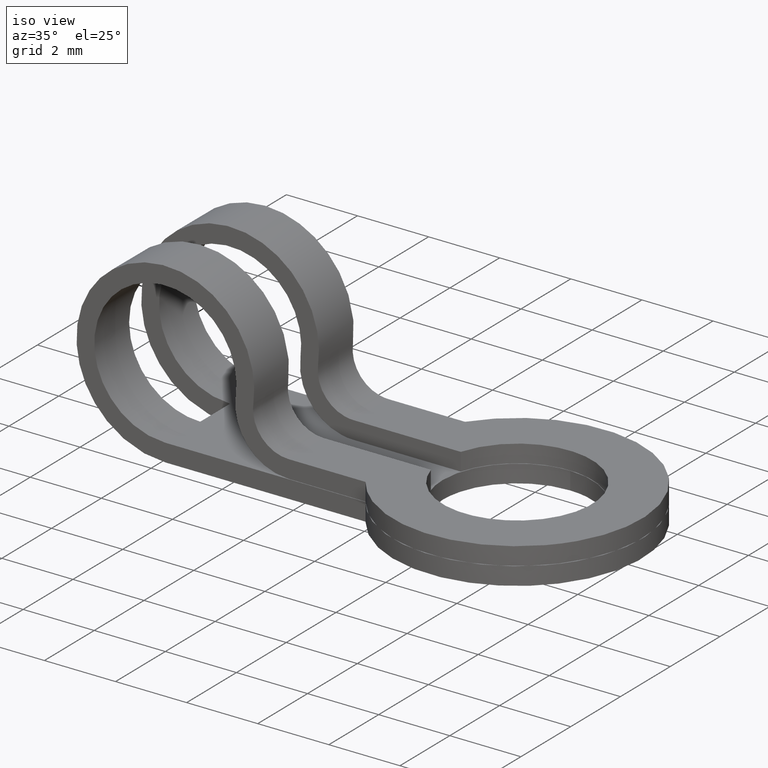
[diagram: clean part render]
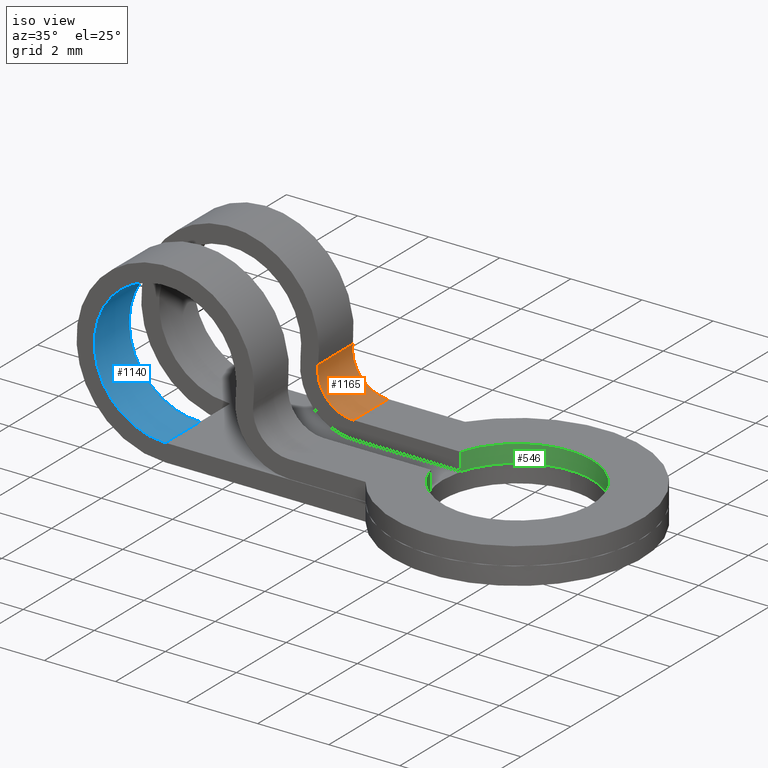
[diagram: same view with three faces highlighted in distinct colors, each labeled with its STEP entity id]
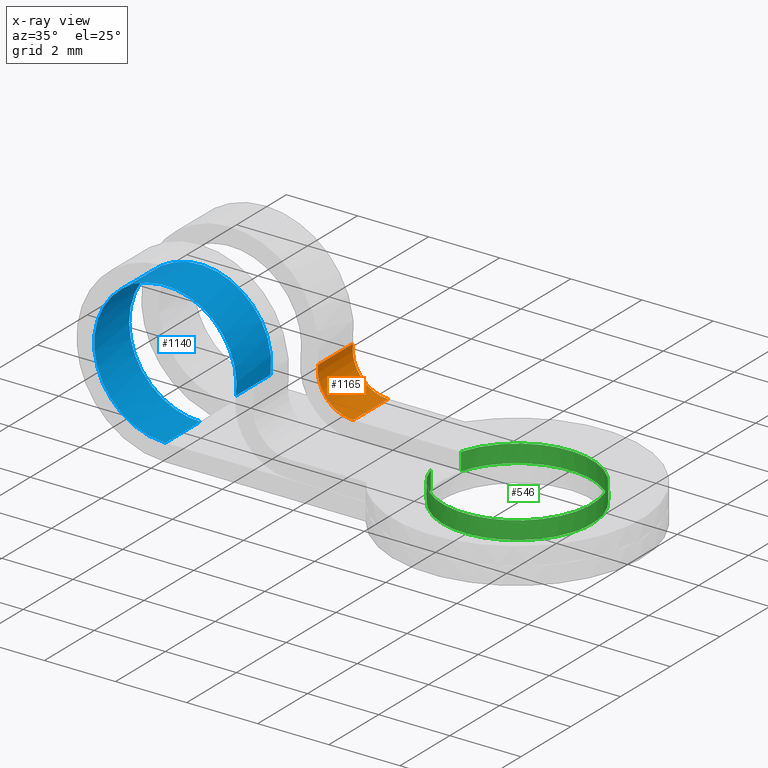
[diagram: x-ray of the same camera — body ghosted, the three highlighted faces saturated]
A machine part, iso view with three faces highlighted in distinct colors.
The next image is the same camera in x-ray (body ghosted, the three faces saturated) — at least one of them is partly hidden behind the body in this view.
Their STEP definitions:

[orange] entity #1165 — the highlighted face is a freeform B-spline surface patch.
#300=CARTESIAN_POINT('',(3.865530262456245,0.600000000000045,-1.490000000000000));
#301=VERTEX_POINT('',#300);
#307=CARTESIAN_POINT('',(2.875378758897320,0.600000000000045,-0.350000000000000));
#308=VERTEX_POINT('',#307);
#309=CARTESIAN_POINT('',(2.875378758897320,0.600000000000045,-0.350000000000000));
#310=CARTESIAN_POINT('',(2.811541781976854,0.600000000000045,-0.801487704860400));
#311=CARTESIAN_POINT('',(3.110546818929170,0.600000000000045,-1.145743852430200));
#312=CARTESIAN_POINT('',(3.409551855881486,0.600000000000045,-1.490000000000001));
#313=CARTESIAN_POINT('',(3.865530262456245,0.600000000000045,-1.490000000000000));
#321=(BOUNDED_CURVE()B_SPLINE_CURVE(2,(#309,#310,#311,#312,#313),.UNSPECIFIED.,.F.,.U.)B_SPLINE_CURVE_WITH_KNOTS((3,2,3),(0.0,0.500000000000000,1.0),.UNSPECIFIED.)CURVE()GEOMETRIC_REPRESENTATION_ITEM()RATIONAL_B_SPLINE_CURVE((1.0,0.909874676103857,1.0,0.909874676103857,1.0))REPRESENTATION_ITEM(''));
#322=EDGE_CURVE('',#308,#301,#321,.T.);
#782=CARTESIAN_POINT('',(2.875378758897320,2.0,-0.350000000000000));
#783=VERTEX_POINT('',#782);
#803=CARTESIAN_POINT('',(3.865530262456245,2.0,-1.490000000000000));
#804=VERTEX_POINT('',#803);
#805=CARTESIAN_POINT('',(2.875378758897320,2.0,-0.350000000000000));
#806=CARTESIAN_POINT('',(2.811541781976854,2.000000000000000,-0.801487704860400));
#807=CARTESIAN_POINT('',(3.110546818929170,2.0,-1.145743852430200));
#808=CARTESIAN_POINT('',(3.409551855881486,2.000000000000000,-1.490000000000001));
#809=CARTESIAN_POINT('',(3.865530262456245,2.0,-1.490000000000000));
#817=(BOUNDED_CURVE()B_SPLINE_CURVE(2,(#805,#806,#807,#808,#809),.UNSPECIFIED.,.F.,.U.)B_SPLINE_CURVE_WITH_KNOTS((3,2,3),(0.0,0.500000000000000,1.0),.UNSPECIFIED.)CURVE()GEOMETRIC_REPRESENTATION_ITEM()RATIONAL_B_SPLINE_CURVE((1.0,0.909874676103857,1.0,0.909874676103857,1.0))REPRESENTATION_ITEM(''));
#818=EDGE_CURVE('',#783,#804,#817,.T.);
#1027=CARTESIAN_POINT('',(3.865530262456245,2.0,-1.490000000000000));
#1028=CARTESIAN_POINT('',(3.865530262456245,0.600000000000045,-1.490000000000000));
#1029=QUASI_UNIFORM_CURVE('',1,(#1027,#1028),.UNSPECIFIED.,.F.,.U.);
#1030=EDGE_CURVE('',#804,#301,#1029,.T.);
#1141=CARTESIAN_POINT('',(3.908315354965192,2.034999999999999,-1.489084298675042));
#1142=CARTESIAN_POINT('',(3.908315354965192,0.564125000000046,-1.489084298675042));
#1143=CARTESIAN_POINT('',(2.611393413171776,2.034999999999998,-1.544624081784539));
#1144=CARTESIAN_POINT('',(2.611393413171776,0.564125000000046,-1.544624081784539));
#1145=CARTESIAN_POINT('',(2.888596747972752,2.034999999999998,-0.276456308267063));
#1146=CARTESIAN_POINT('',(2.888596747972752,0.564125000000046,-0.276456308267063));
#1154=(BOUNDED_SURFACE()B_SPLINE_SURFACE(1,2,((#1141,#1143,#1145),(#1142,#1144,#1146)),.UNSPECIFIED.,.F.,.F.,.U.)B_SPLINE_SURFACE_WITH_KNOTS((2,2),(3,3),(0.0,1.0),(0.0,0.997607128758263),.UNSPECIFIED.)GEOMETRIC_REPRESENTATION_ITEM()RATIONAL_B_SPLINE_SURFACE(((1.0,0.609697612533904,0.998132113282902),(1.0,0.609697612533904,0.998132113282902)))REPRESENTATION_ITEM('')SURFACE());
#1155=CARTESIAN_POINT('',(2.875378758897320,2.0,-0.350000000000000));
#1156=CARTESIAN_POINT('',(2.875378758897320,0.600000000000045,-0.350000000000000));
#1157=QUASI_UNIFORM_CURVE('',1,(#1155,#1156),.UNSPECIFIED.,.F.,.U.);
#1158=EDGE_CURVE('',#783,#308,#1157,.T.);
#1159=ORIENTED_EDGE('',*,*,#1158,.T.);
#1160=ORIENTED_EDGE('',*,*,#322,.T.);
#1161=ORIENTED_EDGE('',*,*,#1030,.F.);
#1162=ORIENTED_EDGE('',*,*,#818,.F.);
#1163=EDGE_LOOP('',(#1159,#1160,#1161,#1162));
#1164=FACE_OUTER_BOUND('',#1163,.T.);
#1165=ADVANCED_FACE('',(#1164),#1154,.F.);

[blue] entity #1140 — the highlighted face is a freeform B-spline surface patch.
#351=CARTESIAN_POINT('',(0.400000000000006,-0.600000000000000,-2.0));
#352=VERTEX_POINT('',#351);
#439=CARTESIAN_POINT('',(2.380303007117855,-0.600000000000045,-0.280000000000000));
#440=VERTEX_POINT('',#439);
#456=CARTESIAN_POINT('',(2.380303007117856,-0.600000000000045,-0.280000000000001));
#457=CARTESIAN_POINT('',(2.574589215357118,-0.600000000000045,1.094091294349061));
#458=CARTESIAN_POINT('',(1.355418149985138,-0.600000000000045,1.757036185933286));
#459=CARTESIAN_POINT('',(0.136247084613157,-0.600000000000045,2.419981077517511));
#460=CARTESIAN_POINT('',(-0.911487704860394,-0.600000000000045,1.509966887054151));
#461=CARTESIAN_POINT('',(-1.959222494333944,-0.600000000000045,0.599952696590792));
#462=CARTESIAN_POINT('',(-1.473490562307196,-0.600000000000045,-0.700023651704603));
#463=CARTESIAN_POINT('',(-0.987758630280446,-0.600000000000045,-2.000000000000000));
#464=CARTESIAN_POINT('',(0.400000000000006,-0.600000000000000,-2.0));
#472=(BOUNDED_CURVE()B_SPLINE_CURVE(2,(#456,#457,#458,#459,#460,#461,#462,#463,#464),.UNSPECIFIED.,.F.,.U.)B_SPLINE_CURVE_WITH_KNOTS((3,2,2,2,3),(0.0,0.250000000000000,0.500000000000000,0.750000000000000,1.0),.UNSPECIFIED.)CURVE()GEOMETRIC_REPRESENTATION_ITEM()RATIONAL_B_SPLINE_CURVE((1.0,0.821587434742129,1.0,0.821587434742129,1.0,0.821587434742129,1.0,0.821587434742129,1.0))REPRESENTATION_ITEM(''));
#473=EDGE_CURVE('',#440,#352,#472,.T.);
#635=CARTESIAN_POINT('',(0.400000000000006,-2.000000000000225,-2.0));
#636=VERTEX_POINT('',#635);
#642=CARTESIAN_POINT('',(2.380303007117855,-2.000000000000225,-0.280000000000000));
#643=VERTEX_POINT('',#642);
#644=CARTESIAN_POINT('',(0.400000000000006,-2.000000000000225,-2.0));
#645=CARTESIAN_POINT('',(-0.987758630280445,-2.000000000000225,-2.000000000000000));
#646=CARTESIAN_POINT('',(-1.473490562307195,-2.000000000000225,-0.700023651704605));
#647=CARTESIAN_POINT('',(-1.959222494333946,-2.000000000000225,0.599952696590790));
#648=CARTESIAN_POINT('',(-0.911487704860395,-2.000000000000225,1.509966887054150));
#649=CARTESIAN_POINT('',(0.136247084613156,-2.000000000000225,2.419981077517510));
#650=CARTESIAN_POINT('',(1.355418149985137,-2.000000000000225,1.757036185933286));
#651=CARTESIAN_POINT('',(2.574589215357118,-2.000000000000225,1.094091294349062));
#652=CARTESIAN_POINT('',(2.380303007117856,-2.000000000000225,-0.280000000000000));
#660=(BOUNDED_CURVE()B_SPLINE_CURVE(2,(#644,#645,#646,#647,#648,#649,#650,#651,#652),.UNSPECIFIED.,.F.,.U.)B_SPLINE_CURVE_WITH_KNOTS((3,2,2,2,3),(0.0,0.250000000000000,0.500000000000000,0.750000000000000,1.0),.UNSPECIFIED.)CURVE()GEOMETRIC_REPRESENTATION_ITEM()RATIONAL_B_SPLINE_CURVE((1.0,0.821587434742129,1.0,0.821587434742129,1.0,0.821587434742129,1.0,0.821587434742129,1.0))REPRESENTATION_ITEM(''));
#661=EDGE_CURVE('',#636,#643,#660,.T.);
#979=CARTESIAN_POINT('',(2.380303007117855,-0.600000000000045,-0.280000000000000));
#980=CARTESIAN_POINT('',(2.380303007117855,-2.000000000000225,-0.280000000000000));
#981=QUASI_UNIFORM_CURVE('',1,(#979,#980),.UNSPECIFIED.,.F.,.U.);
#982=EDGE_CURVE('',#440,#643,#981,.T.);
#1046=CARTESIAN_POINT('',(0.400000000000006,-0.600000000000000,-2.0));
#1047=CARTESIAN_POINT('',(0.400000000000006,-2.000000000000225,-2.0));
#1048=QUASI_UNIFORM_CURVE('',1,(#1046,#1047),.UNSPECIFIED.,.F.,.U.);
#1049=EDGE_CURVE('',#352,#636,#1048,.T.);
#1112=CARTESIAN_POINT('',(0.485570185017899,-0.564999999999994,-1.998168597350084));
#1113=CARTESIAN_POINT('',(0.485570185017899,-2.035875000000231,-1.998168597350084));
#1114=CARTESIAN_POINT('',(-1.695048191839909,-0.564999999999994,-2.091552067698181));
#1115=CARTESIAN_POINT('',(-1.695048191839909,-2.035875000000232,-2.091552067698181));
#1116=CARTESIAN_POINT('',(-1.598022895605858,-0.564999999999994,0.088907303607538));
#1117=CARTESIAN_POINT('',(-1.598022895605858,-2.035875000000231,0.088907303607538));
#1118=CARTESIAN_POINT('',(-1.500997599371804,-0.564999999999994,2.269366674913257));
#1119=CARTESIAN_POINT('',(-1.500997599371804,-2.035875000000232,2.269366674913257));
#1120=CARTESIAN_POINT('',(0.662708153968823,-0.564999999999994,1.982671033186872));
#1121=CARTESIAN_POINT('',(0.662708153968823,-2.035875000000231,1.982671033186872));
#1122=CARTESIAN_POINT('',(2.826413907309451,-0.564999999999994,1.695975391460485));
#1123=CARTESIAN_POINT('',(2.826413907309451,-2.035875000000232,1.695975391460485));
#1124=CARTESIAN_POINT('',(2.352229847035832,-0.564999999999994,-0.434509636650875));
#1125=CARTESIAN_POINT('',(2.352229847035832,-2.035875000000231,-0.434509636650875));
#1133=(BOUNDED_SURFACE()B_SPLINE_SURFACE(1,2,((#1112,#1114,#1116,#1118,#1120,#1122,#1124),(#1113,#1115,#1117,#1119,#1121,#1123,#1125)),.UNSPECIFIED.,.F.,.F.,.U.)B_SPLINE_SURFACE_WITH_KNOTS((2,2),(3,2,2,3),(0.0,1.0),(0.0,3.520084247134668,7.040168494269336,10.560252741404000),.UNSPECIFIED.)GEOMETRIC_REPRESENTATION_ITEM()RATIONAL_B_SPLINE_SURFACE(((1.0,0.675590207615660,1.0,0.675590207615660,1.0,0.675590207615660,1.0),(1.0,0.675590207615660,1.0,0.675590207615660,1.0,0.675590207615660,1.0)))REPRESENTATION_ITEM('')SURFACE());
#1134=ORIENTED_EDGE('',*,*,#473,.F.);
#1135=ORIENTED_EDGE('',*,*,#982,.T.);
#1136=ORIENTED_EDGE('',*,*,#661,.F.);
#1137=ORIENTED_EDGE('',*,*,#1049,.F.);
#1138=EDGE_LOOP('',(#1134,#1135,#1136,#1137));
#1139=FACE_OUTER_BOUND('',#1138,.T.);
#1140=ADVANCED_FACE('',(#1139),#1133,.F.);

[green] entity #546 — the highlighted face is a freeform B-spline surface patch.
#286=CARTESIAN_POINT('',(6.887538820250209,0.600000000000045,-1.990000000000045));
#287=VERTEX_POINT('',#286);
#293=CARTESIAN_POINT('',(6.887538820250209,0.600000000000045,-1.490000000000000));
#294=VERTEX_POINT('',#293);
#295=CARTESIAN_POINT('',(6.887538820250209,0.600000000000045,-1.990000000000045));
#296=CARTESIAN_POINT('',(6.887538820250209,0.600000000000045,-1.490000000000000));
#297=QUASI_UNIFORM_CURVE('',1,(#295,#296),.UNSPECIFIED.,.F.,.U.);
#298=EDGE_CURVE('',#287,#294,#297,.T.);
#418=CARTESIAN_POINT('',(6.887538820250209,-0.600000000000045,-1.490000000000000));
#419=VERTEX_POINT('',#418);
#425=CARTESIAN_POINT('',(6.887538820250209,-0.600000000000045,-1.990000000000045));
#426=VERTEX_POINT('',#425);
#427=CARTESIAN_POINT('',(6.887538820250209,-0.600000000000045,-1.490000000000000));
#428=CARTESIAN_POINT('',(6.887538820250209,-0.600000000000045,-1.990000000000045));
#429=QUASI_UNIFORM_CURVE('',1,(#427,#428),.UNSPECIFIED.,.F.,.U.);
#430=EDGE_CURVE('',#419,#426,#429,.T.);
#478=CARTESIAN_POINT('',(6.872522271449439,-0.547114302711466,-1.477499999999999));
#479=CARTESIAN_POINT('',(6.872522271449439,-0.547114302711466,-2.002812500000046));
#480=CARTESIAN_POINT('',(7.354444304060431,-2.333004715691382,-1.477499999999999));
#481=CARTESIAN_POINT('',(7.354444304060431,-2.333004715691382,-2.002812500000046));
#482=CARTESIAN_POINT('',(9.186874497041405,-2.080313203089196,-1.477499999999999));
#483=CARTESIAN_POINT('',(9.186874497041405,-2.080313203089196,-2.002812500000046));
#484=CARTESIAN_POINT('',(11.019304690022382,-1.827621690487014,-1.477499999999999));
#485=CARTESIAN_POINT('',(11.019304690022382,-1.827621690487014,-2.002812500000046));
#486=CARTESIAN_POINT('',(10.999884260146530,0.022047539292441,-1.477499999999999));
#487=CARTESIAN_POINT('',(10.999884260146530,0.022047539292441,-2.002812500000046));
#488=CARTESIAN_POINT('',(10.980463830270683,1.871716769071897,-1.477499999999999));
#489=CARTESIAN_POINT('',(10.980463830270683,1.871716769071897,-2.002812500000046));
#490=CARTESIAN_POINT('',(9.143131960828690,2.085877956550577,-1.477499999999999));
#491=CARTESIAN_POINT('',(9.143131960828690,2.085877956550577,-2.002812500000046));
#492=CARTESIAN_POINT('',(7.305800091386694,2.300039144029257,-1.477499999999999));
#493=CARTESIAN_POINT('',(7.305800091386694,2.300039144029257,-2.002812500000046));
#494=CARTESIAN_POINT('',(6.861481745494572,0.504423756427228,-1.477499999999999));
#495=CARTESIAN_POINT('',(6.861481745494572,0.504423756427228,-2.002812500000046));
#503=(BOUNDED_SURFACE()B_SPLINE_SURFACE(1,2,((#478,#480,#482,#484,#486,#488,#490,#492,#494),(#479,#481,#483,#485,#487,#489,#491,#493,#495)),.UNSPECIFIED.,.F.,.F.,.U.)B_SPLINE_SURFACE_WITH_KNOTS((2,2),(3,2,2,2,3),(0.0,1.0),(0.0,3.172001409333480,6.344002818666960,9.516004228000440,12.688005637333919),.UNSPECIFIED.)GEOMETRIC_REPRESENTATION_ITEM()RATIONAL_B_SPLINE_SURFACE(((1.0,0.750399549951834,1.0,0.750399549951834,1.0,0.750399549951834,1.0,0.750399549951834,1.0),(1.0,0.750399549951834,1.0,0.750399549951834,1.0,0.750399549951834,1.0,0.750399549951834,1.0)))REPRESENTATION_ITEM('')SURFACE());
#504=ORIENTED_EDGE('',*,*,#298,.F.);
#505=CARTESIAN_POINT('',(6.887538820250203,-0.600000000000047,-1.990000000000045));
#506=CARTESIAN_POINT('',(7.406352245028296,-2.340153128164829,-1.990000000000045));
#507=CARTESIAN_POINT('',(9.203176122514147,-2.078000057444005,-1.990000000000045));
#508=CARTESIAN_POINT('',(11.0,-1.815846986723179,-1.990000000000045));
#509=CARTESIAN_POINT('',(11.0,0.0,-1.990000000000045));
#510=CARTESIAN_POINT('',(11.0,1.815846986723179,-1.990000000000045));
#511=CARTESIAN_POINT('',(9.203176122514149,2.078000057444005,-1.990000000000045));
#512=CARTESIAN_POINT('',(7.406352245028296,2.340153128164831,-1.990000000000045));
#513=CARTESIAN_POINT('',(6.887538820250203,0.600000000000048,-1.990000000000045));
#521=(BOUNDED_CURVE()B_SPLINE_CURVE(2,(#505,#506,#507,#508,#509,#510,#511,#512,#513),.UNSPECIFIED.,.F.,.U.)B_SPLINE_CURVE_WITH_KNOTS((3,2,2,2,3),(0.0,0.250000000000000,0.500000000000000,0.750000000000000,1.0),.UNSPECIFIED.)CURVE()GEOMETRIC_REPRESENTATION_ITEM()RATIONAL_B_SPLINE_CURVE((1.0,0.756428972921316,1.0,0.756428972921316,1.0,0.756428972921316,1.0,0.756428972921316,1.0))REPRESENTATION_ITEM(''));
#522=EDGE_CURVE('',#426,#287,#521,.T.);
#523=ORIENTED_EDGE('',*,*,#522,.F.);
#524=ORIENTED_EDGE('',*,*,#430,.F.);
#525=CARTESIAN_POINT('',(6.887538820250203,0.600000000000047,-1.490000000000000));
#526=CARTESIAN_POINT('',(7.406352245028294,2.340153128164829,-1.490000000000000));
#527=CARTESIAN_POINT('',(9.203176122514147,2.078000057444005,-1.490000000000000));
#528=CARTESIAN_POINT('',(11.000000000000002,1.815846986723179,-1.490000000000000));
#529=CARTESIAN_POINT('',(11.0,0.0,-1.490000000000000));
#530=CARTESIAN_POINT('',(11.000000000000002,-1.815846986723179,-1.490000000000000));
#531=CARTESIAN_POINT('',(9.203176122514149,-2.078000057444005,-1.490000000000000));
#532=CARTESIAN_POINT('',(7.406352245028296,-2.340153128164829,-1.490000000000000));
#533=CARTESIAN_POINT('',(6.887538820250203,-0.600000000000048,-1.490000000000000));
#541=(BOUNDED_CURVE()B_SPLINE_CURVE(2,(#525,#526,#527,#528,#529,#530,#531,#532,#533),.UNSPECIFIED.,.F.,.U.)B_SPLINE_CURVE_WITH_KNOTS((3,2,2,2,3),(0.0,0.250000000000000,0.500000000000000,0.750000000000000,1.0),.UNSPECIFIED.)CURVE()GEOMETRIC_REPRESENTATION_ITEM()RATIONAL_B_SPLINE_CURVE((1.0,0.756428972921316,1.0,0.756428972921316,1.0,0.756428972921316,1.0,0.756428972921316,1.0))REPRESENTATION_ITEM(''));
#542=EDGE_CURVE('',#294,#419,#541,.T.);
#543=ORIENTED_EDGE('',*,*,#542,.F.);
#544=EDGE_LOOP('',(#504,#523,#524,#543));
#545=FACE_OUTER_BOUND('',#544,.T.);
#546=ADVANCED_FACE('',(#545),#503,.F.);